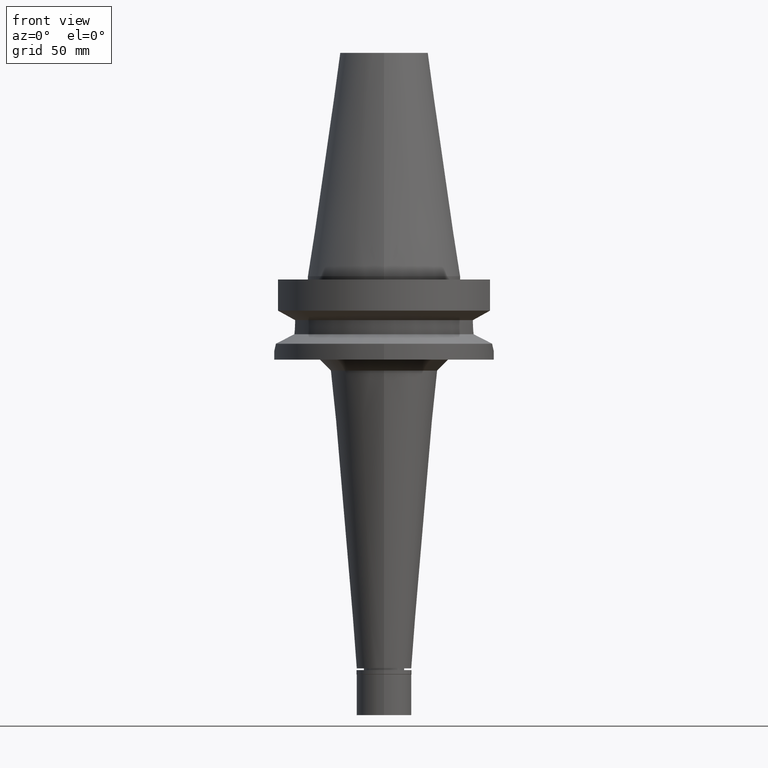
[diagram: clean part render]
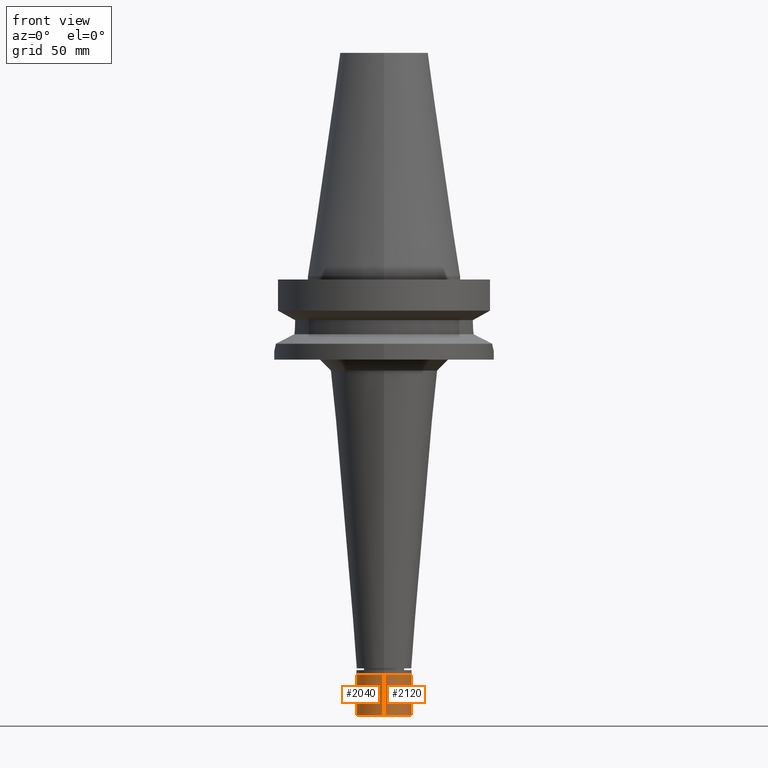
[diagram: same view with one multi-face feature highlighted, each face labeled with its STEP entity id]
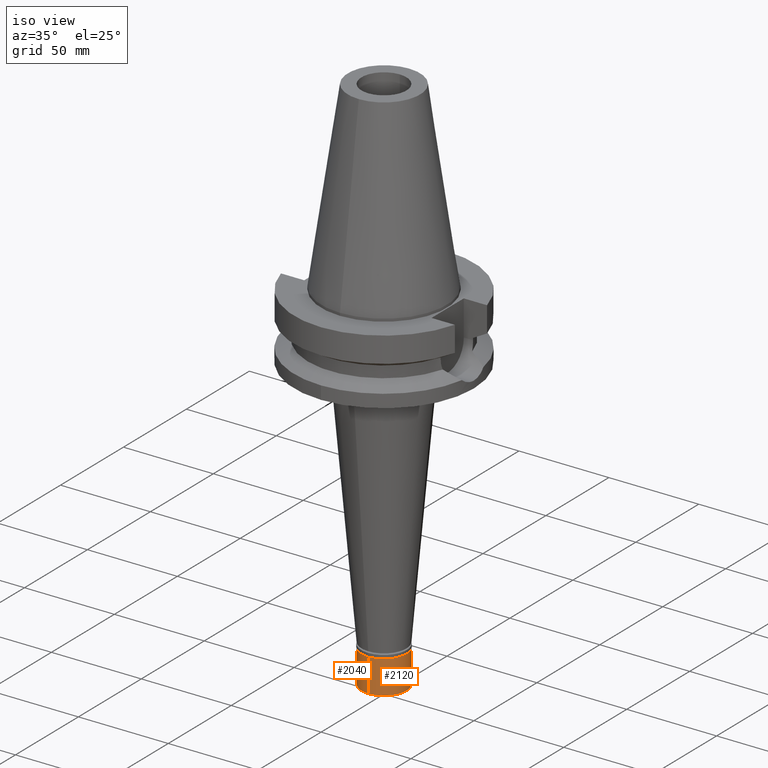
[diagram: same view with one multi-face feature highlighted, each face labeled with its STEP entity id]
A machine part, front view. The highlighted faces form ONE feature: a constant-radius fillet chain: 2 tangent blend faces with common blend radius 12.5 mm. The faces share edges in the B-rep.
A second angle (iso view) of the same feature is appended — it is thin or edge-on in the first view.
Their STEP definitions:
[1] entity #2120 (Cylinder):
#235 = CYLINDRICAL_SURFACE ( 'NONE', #2288, 12.50000000000000000 ) ;
#437 = DIRECTION ( 'NONE',  ( 0.0000000000000000000, 0.0000000000000000000, -1.000000000000000000 ) ) ;
#589 = CARTESIAN_POINT ( 'NONE',  ( 0.0000000000000000000, -12.50000000000000000, -20.50000000000000000 ) ) ;
#769 = DIRECTION ( 'NONE',  ( 0.0000000000000000000, 0.0000000000000000000, -1.000000000000000000 ) ) ;
#965 = ORIENTED_EDGE ( 'NONE', *, *, #1072, .T. ) ;
#1007 = LINE ( 'NONE', #2039, #2278 ) ;
#1026 = DIRECTION ( 'NONE',  ( 0.0000000000000000000, -1.000000000000000000, 0.0000000000000000000 ) ) ;
#1072 = EDGE_CURVE ( 'NONE', #2203, #1381, #1007, .T. ) ;
#1090 = CIRCLE ( 'NONE', #3003, 12.50000000000000000 ) ;
#1156 = DIRECTION ( 'NONE',  ( 0.0000000000000000000, 0.0000000000000000000, -1.000000000000000000 ) ) ;
#1168 = ORIENTED_EDGE ( 'NONE', *, *, #1700, .T. ) ;
#1184 = CARTESIAN_POINT ( 'NONE',  ( 0.0000000000000000000, -12.50000000000000000, -2.000000000000000000 ) ) ;
#1277 = ORIENTED_EDGE ( 'NONE', *, *, #2499, .F. ) ;
#1381 = VERTEX_POINT ( 'NONE', #589 ) ;
#1401 = CARTESIAN_POINT ( 'NONE',  ( 0.0000000000000000000, 0.0000000000000000000, 0.0000000000000000000 ) ) ;
#1419 = CARTESIAN_POINT ( 'NONE',  ( 0.0000000000000000000, 0.0000000000000000000, -2.000000000000000000 ) ) ;
#1515 = VECTOR ( 'NONE', #437, 1000.000000000000000 ) ;
#1577 = VERTEX_POINT ( 'NONE', #1918 ) ;
#1649 = DIRECTION ( 'NONE',  ( 0.0000000000000000000, 1.000000000000000000, 0.0000000000000000000 ) ) ;
#1698 = DIRECTION ( 'NONE',  ( 0.0000000000000000000, 0.0000000000000000000, -1.000000000000000000 ) ) ;
#1700 = EDGE_CURVE ( 'NONE', #1381, #2473, #2619, .T. ) ;
#1741 = DIRECTION ( 'NONE',  ( 0.0000000000000000000, 0.0000000000000000000, 1.000000000000000000 ) ) ;
#1918 = CARTESIAN_POINT ( 'NONE',  ( 0.0000000000000000000, 12.50000000000000000, -2.000000000000000000 ) ) ;
#1959 = CARTESIAN_POINT ( 'NONE',  ( 0.0000000000000000000, 12.50000000000000000, -2.000000000000000000 ) ) ;
#2039 = CARTESIAN_POINT ( 'NONE',  ( 0.0000000000000000000, -12.50000000000000000, -2.000000000000000000 ) ) ;
#2120 = ADVANCED_FACE ( 'NONE', ( #2883 ), #235, .T. ) ;
#2203 = VERTEX_POINT ( 'NONE', #1184 ) ;
#2210 = AXIS2_PLACEMENT_3D ( 'NONE', #2754, #1741, #1026 ) ;
#2278 = VECTOR ( 'NONE', #769, 1000.000000000000000 ) ;
#2288 = AXIS2_PLACEMENT_3D ( 'NONE', #1401, #1698, #2411 ) ;
#2411 = DIRECTION ( 'NONE',  ( 0.0000000000000000000, -1.000000000000000000, 0.0000000000000000000 ) ) ;
#2470 = EDGE_CURVE ( 'NONE', #1577, #2203, #1090, .T. ) ;
#2473 = VERTEX_POINT ( 'NONE', #2700 ) ;
#2499 = EDGE_CURVE ( 'NONE', #1577, #2473, #2632, .T. ) ;
#2601 = EDGE_LOOP ( 'NONE', ( #2931, #965, #1168, #1277 ) ) ;
#2619 = CIRCLE ( 'NONE', #2210, 12.50000000000000000 ) ;
#2632 = LINE ( 'NONE', #1959, #1515 ) ;
#2700 = CARTESIAN_POINT ( 'NONE',  ( 0.0000000000000000000, 12.50000000000000000, -20.50000000000000000 ) ) ;
#2754 = CARTESIAN_POINT ( 'NONE',  ( 0.0000000000000000000, 0.0000000000000000000, -20.50000000000000000 ) ) ;
#2883 = FACE_OUTER_BOUND ( 'NONE', #2601, .T. ) ;
#2931 = ORIENTED_EDGE ( 'NONE', *, *, #2470, .T. ) ;
#3003 = AXIS2_PLACEMENT_3D ( 'NONE', #1419, #1156, #1649 ) ;
[2] entity #2040 (Cylinder):
#58 = AXIS2_PLACEMENT_3D ( 'NONE', #2528, #311, #325 ) ;
#67 = EDGE_CURVE ( 'NONE', #2473, #1381, #2959, .T. ) ;
#190 = DIRECTION ( 'NONE',  ( 0.0000000000000000000, 0.0000000000000000000, -1.000000000000000000 ) ) ;
#311 = DIRECTION ( 'NONE',  ( 0.0000000000000000000, 0.0000000000000000000, 1.000000000000000000 ) ) ;
#325 = DIRECTION ( 'NONE',  ( 0.0000000000000000000, 1.000000000000000000, 0.0000000000000000000 ) ) ;
#327 = EDGE_CURVE ( 'NONE', #2203, #1577, #1341, .T. ) ;
#437 = DIRECTION ( 'NONE',  ( 0.0000000000000000000, 0.0000000000000000000, -1.000000000000000000 ) ) ;
#589 = CARTESIAN_POINT ( 'NONE',  ( 0.0000000000000000000, -12.50000000000000000, -20.50000000000000000 ) ) ;
#769 = DIRECTION ( 'NONE',  ( 0.0000000000000000000, 0.0000000000000000000, -1.000000000000000000 ) ) ;
#822 = ORIENTED_EDGE ( 'NONE', *, *, #2499, .T. ) ;
#851 = ORIENTED_EDGE ( 'NONE', *, *, #67, .T. ) ;
#968 = ORIENTED_EDGE ( 'NONE', *, *, #1072, .F. ) ;
#1007 = LINE ( 'NONE', #2039, #2278 ) ;
#1072 = EDGE_CURVE ( 'NONE', #2203, #1381, #1007, .T. ) ;
#1083 = ORIENTED_EDGE ( 'NONE', *, *, #327, .T. ) ;
#1146 = DIRECTION ( 'NONE',  ( 0.0000000000000000000, 0.0000000000000000000, -1.000000000000000000 ) ) ;
#1176 = DIRECTION ( 'NONE',  ( 0.0000000000000000000, -1.000000000000000000, 0.0000000000000000000 ) ) ;
#1184 = CARTESIAN_POINT ( 'NONE',  ( 0.0000000000000000000, -12.50000000000000000, -2.000000000000000000 ) ) ;
#1236 = AXIS2_PLACEMENT_3D ( 'NONE', #2194, #1146, #3100 ) ;
#1341 = CIRCLE ( 'NONE', #1236, 12.50000000000000000 ) ;
#1381 = VERTEX_POINT ( 'NONE', #589 ) ;
#1515 = VECTOR ( 'NONE', #437, 1000.000000000000000 ) ;
#1577 = VERTEX_POINT ( 'NONE', #1918 ) ;
#1641 = CYLINDRICAL_SURFACE ( 'NONE', #1874, 12.50000000000000000 ) ;
#1874 = AXIS2_PLACEMENT_3D ( 'NONE', #3171, #190, #1176 ) ;
#1918 = CARTESIAN_POINT ( 'NONE',  ( 0.0000000000000000000, 12.50000000000000000, -2.000000000000000000 ) ) ;
#1959 = CARTESIAN_POINT ( 'NONE',  ( 0.0000000000000000000, 12.50000000000000000, -2.000000000000000000 ) ) ;
#2039 = CARTESIAN_POINT ( 'NONE',  ( 0.0000000000000000000, -12.50000000000000000, -2.000000000000000000 ) ) ;
#2040 = ADVANCED_FACE ( 'NONE', ( #2197 ), #1641, .T. ) ;
#2194 = CARTESIAN_POINT ( 'NONE',  ( 0.0000000000000000000, 0.0000000000000000000, -2.000000000000000000 ) ) ;
#2197 = FACE_OUTER_BOUND ( 'NONE', #2815, .T. ) ;
#2203 = VERTEX_POINT ( 'NONE', #1184 ) ;
#2278 = VECTOR ( 'NONE', #769, 1000.000000000000000 ) ;
#2473 = VERTEX_POINT ( 'NONE', #2700 ) ;
#2499 = EDGE_CURVE ( 'NONE', #1577, #2473, #2632, .T. ) ;
#2528 = CARTESIAN_POINT ( 'NONE',  ( 0.0000000000000000000, 0.0000000000000000000, -20.50000000000000000 ) ) ;
#2632 = LINE ( 'NONE', #1959, #1515 ) ;
#2700 = CARTESIAN_POINT ( 'NONE',  ( 0.0000000000000000000, 12.50000000000000000, -20.50000000000000000 ) ) ;
#2815 = EDGE_LOOP ( 'NONE', ( #851, #968, #1083, #822 ) ) ;
#2959 = CIRCLE ( 'NONE', #58, 12.50000000000000000 ) ;
#3100 = DIRECTION ( 'NONE',  ( 0.0000000000000000000, -1.000000000000000000, 0.0000000000000000000 ) ) ;
#3171 = CARTESIAN_POINT ( 'NONE',  ( 0.0000000000000000000, 0.0000000000000000000, 0.0000000000000000000 ) ) ;